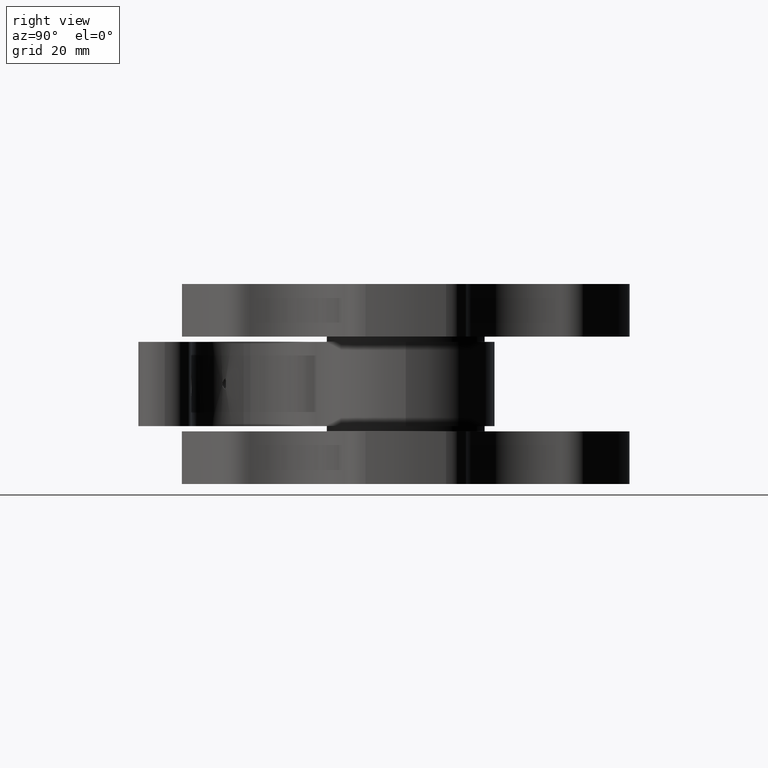
[diagram: clean part render]
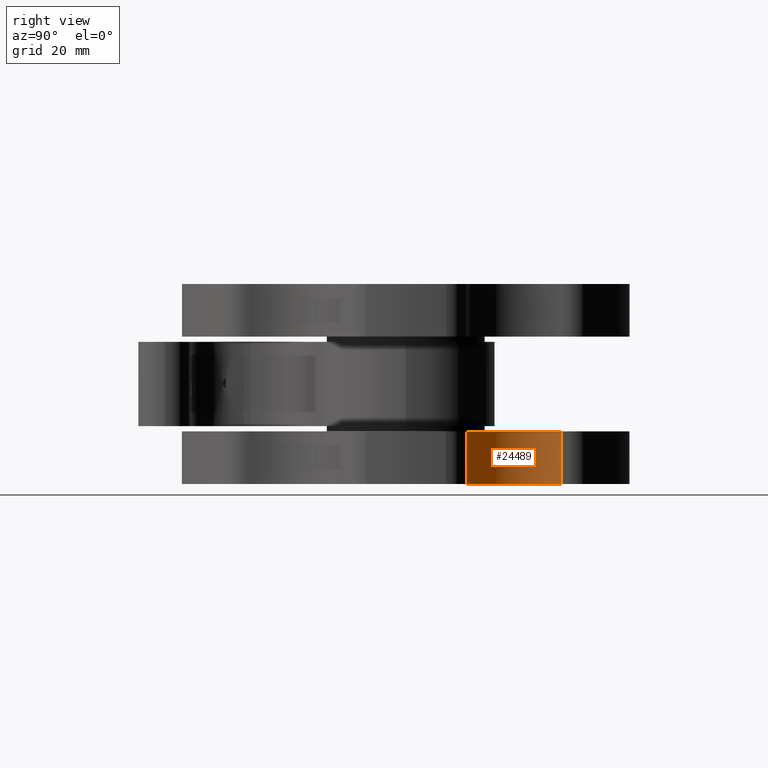
[diagram: same view with one face highlighted and labeled with its STEP entity id]
A machine part, right view. The second image highlights one B-rep face of the part: STEP entity #24489.
In plain terms, the highlighted cylindrical surface (partial cylindrical patch) has radius 15 mm, axis along (0, 0, 1).
Its self-contained STEP definition (entity closure, byte-faithful):
#616 = DIRECTION ( 'NONE',  ( 4.201907058881557700E-017, 1.638974304573498600E-016, 1.000000000000000000 ) ) ;
#1337 = CARTESIAN_POINT ( 'NONE',  ( 45.03332099679104100, 26.00000000000015300, -17.00000000000000700 ) ) ;
#2494 = ORIENTED_EDGE ( 'NONE', *, *, #19272, .F. ) ;
#4535 = CARTESIAN_POINT ( 'NONE',  ( 30.45951985098048500, 29.55025635164184900, -27.00000000000001100 ) ) ;
#5379 = DIRECTION ( 'NONE',  ( 0.0000000000000000000, -1.000000000000000000, 2.312964634635730600E-016 ) ) ;
#5851 = EDGE_LOOP ( 'NONE', ( #22453, #17046, #2494, #8195 ) ) ;
#5898 = LINE ( 'NONE', #19158, #8455 ) ;
#7164 = DIRECTION ( 'NONE',  ( 4.201907058881557700E-017, 1.638974304573498600E-016, 1.000000000000000000 ) ) ;
#7860 = AXIS2_PLACEMENT_3D ( 'NONE', #1337, #25993, #17917 ) ;
#7923 = DIRECTION ( 'NONE',  ( 4.201907058881557700E-017, 1.638974304573498600E-016, 1.000000000000000000 ) ) ;
#8195 = ORIENTED_EDGE ( 'NONE', *, *, #12713, .T. ) ;
#8455 = VECTOR ( 'NONE', #616, 1000.000000000000000 ) ;
#9219 = CIRCLE ( 'NONE', #7860, 15.00000000000008000 ) ;
#9548 = CARTESIAN_POINT ( 'NONE',  ( 40.82103261435445100, 11.60358980220461300, -17.00000000000000400 ) ) ;
#9875 = VERTEX_POINT ( 'NONE', #22254 ) ;
#12713 = EDGE_CURVE ( 'NONE', #24316, #9875, #5898, .T. ) ;
#13929 = FACE_OUTER_BOUND ( 'NONE', #5851, .T. ) ;
#14615 = VERTEX_POINT ( 'NONE', #9548 ) ;
#15441 = DIRECTION ( 'NONE',  ( 0.0000000000000000000, -1.000000000000000000, 2.312964634635730600E-016 ) ) ;
#16099 = CARTESIAN_POINT ( 'NONE',  ( 40.82103261435445100, 11.60358980220461200, -27.00000000000000400 ) ) ;
#16663 = VECTOR ( 'NONE', #7923, 1000.000000000000000 ) ;
#17046 = ORIENTED_EDGE ( 'NONE', *, *, #17653, .F. ) ;
#17320 = CARTESIAN_POINT ( 'NONE',  ( 45.03332099679104100, 26.00000000000013100, -27.00000000000000700 ) ) ;
#17653 = EDGE_CURVE ( 'NONE', #26242, #14615, #21160, .T. ) ;
#17917 = DIRECTION ( 'NONE',  ( 0.0000000000000000000, -1.000000000000000000, 2.312964634635730600E-016 ) ) ;
#18582 = EDGE_CURVE ( 'NONE', #9875, #14615, #9219, .T. ) ;
#18710 = CARTESIAN_POINT ( 'NONE',  ( 40.82103261435445100, 11.60358980220461200, -27.00000000000000400 ) ) ;
#19158 = CARTESIAN_POINT ( 'NONE',  ( 30.45951985098048500, 29.55025635164184900, -27.00000000000001100 ) ) ;
#19272 = EDGE_CURVE ( 'NONE', #24316, #26242, #25338, .T. ) ;
#20024 = CYLINDRICAL_SURFACE ( 'NONE', #22434, 15.00000000000008000 ) ;
#21160 = LINE ( 'NONE', #16099, #16663 ) ;
#21720 = CARTESIAN_POINT ( 'NONE',  ( 45.03332099679104100, 26.00000000000013100, -27.00000000000000700 ) ) ;
#22254 = CARTESIAN_POINT ( 'NONE',  ( 30.45951985098048500, 29.55025635164184900, -17.00000000000000700 ) ) ;
#22434 = AXIS2_PLACEMENT_3D ( 'NONE', #17320, #7164, #15441 ) ;
#22453 = ORIENTED_EDGE ( 'NONE', *, *, #18582, .T. ) ;
#24316 = VERTEX_POINT ( 'NONE', #4535 ) ;
#24489 = ADVANCED_FACE ( 'NONE', ( #13929 ), #20024, .F. ) ;
#24746 = AXIS2_PLACEMENT_3D ( 'NONE', #21720, #25924, #5379 ) ;
#25338 = CIRCLE ( 'NONE', #24746, 15.00000000000008000 ) ;
#25924 = DIRECTION ( 'NONE',  ( 4.201907058881557700E-017, 1.638974304573498600E-016, 1.000000000000000000 ) ) ;
#25993 = DIRECTION ( 'NONE',  ( 4.201907058881557700E-017, 1.638974304573498600E-016, 1.000000000000000000 ) ) ;
#26242 = VERTEX_POINT ( 'NONE', #18710 ) ;